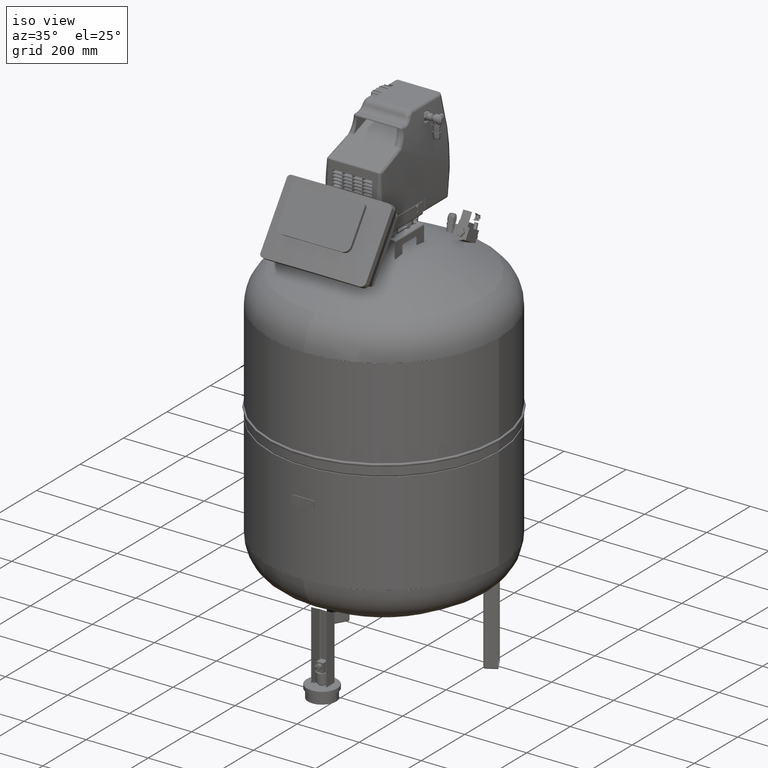
[diagram: clean part render]
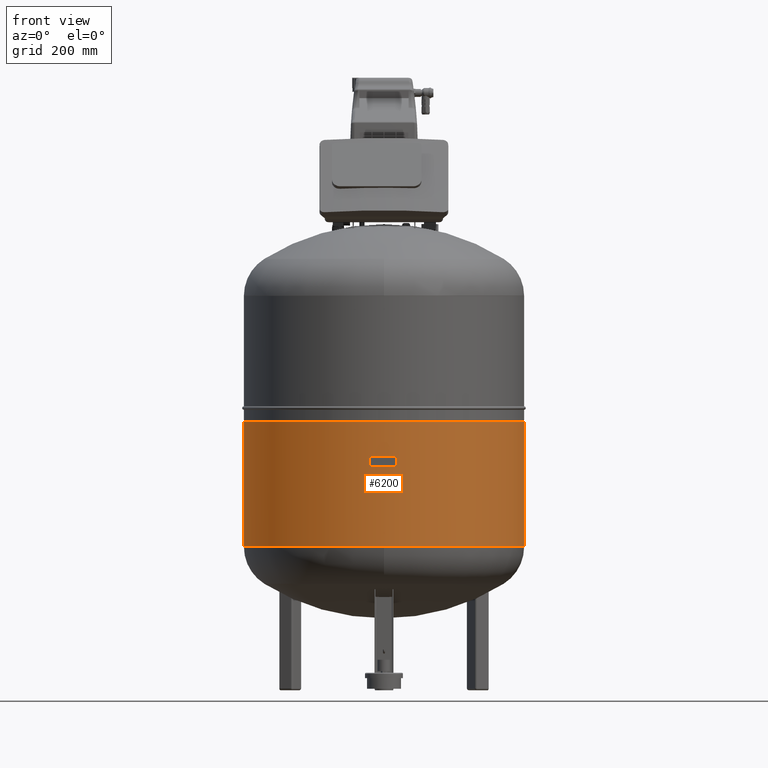
[diagram: tour spotlight — one face highlighted and labeled with its STEP entity id]
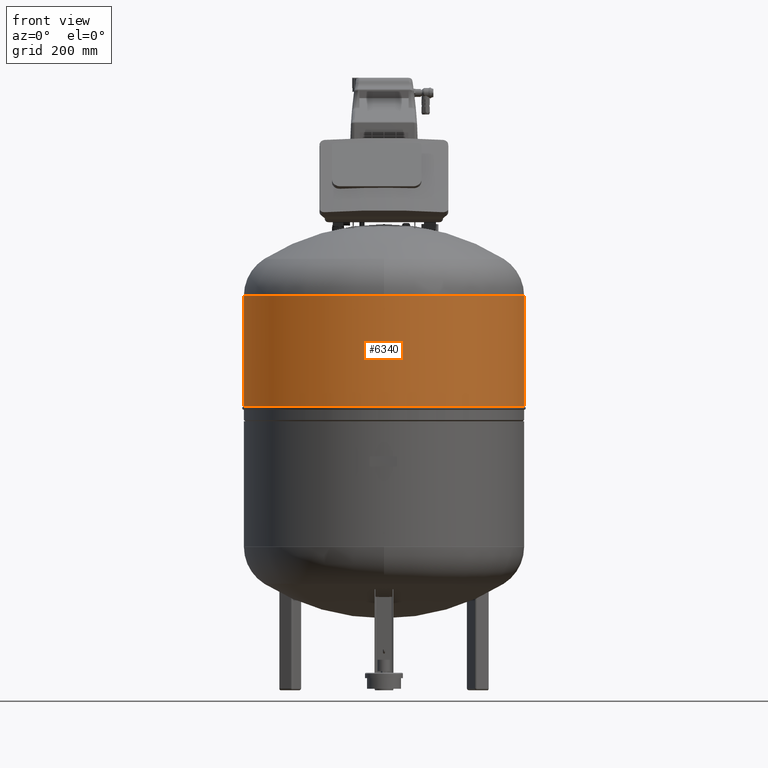
[diagram: tour spotlight — one face highlighted and labeled with its STEP entity id]
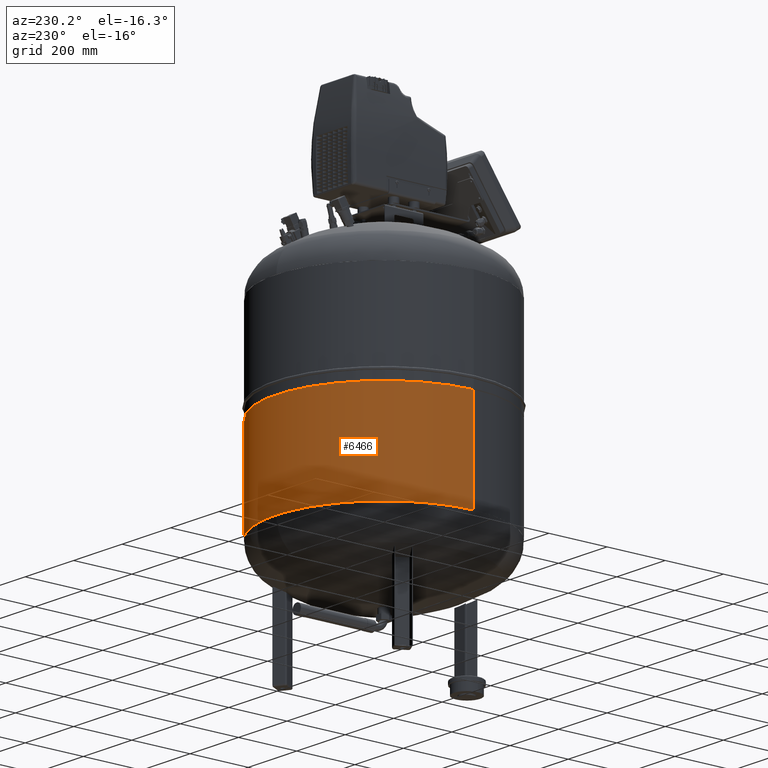
[diagram: tour spotlight — one face highlighted and labeled with its STEP entity id]
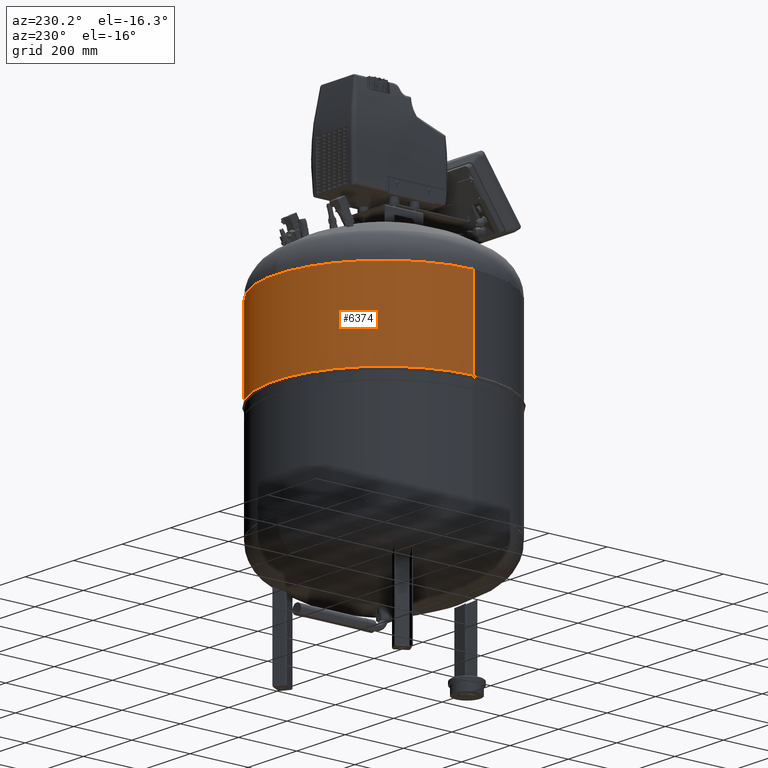
[diagram: tour spotlight — one face highlighted and labeled with its STEP entity id]
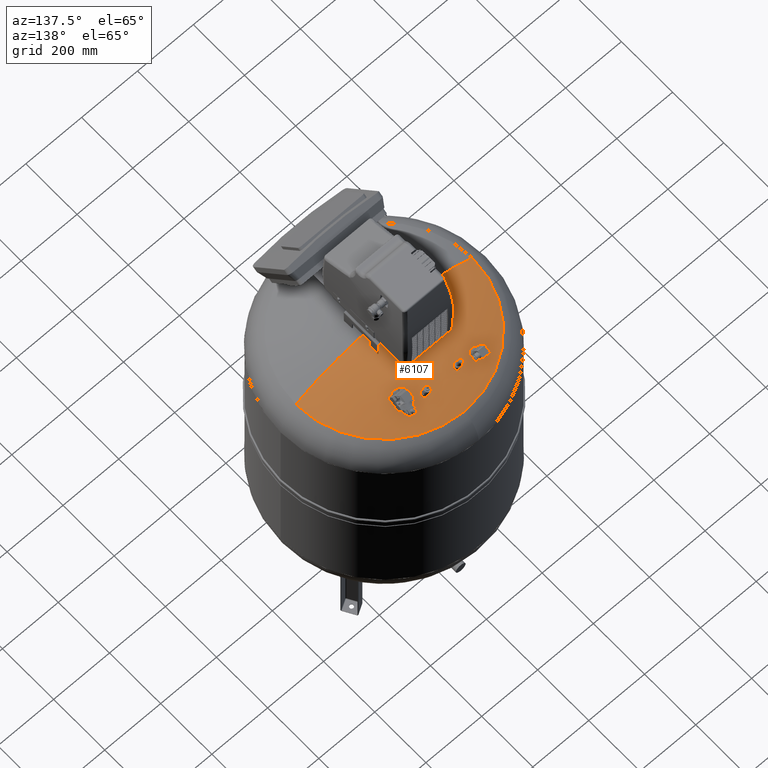
[diagram: tour spotlight — one face highlighted and labeled with its STEP entity id]
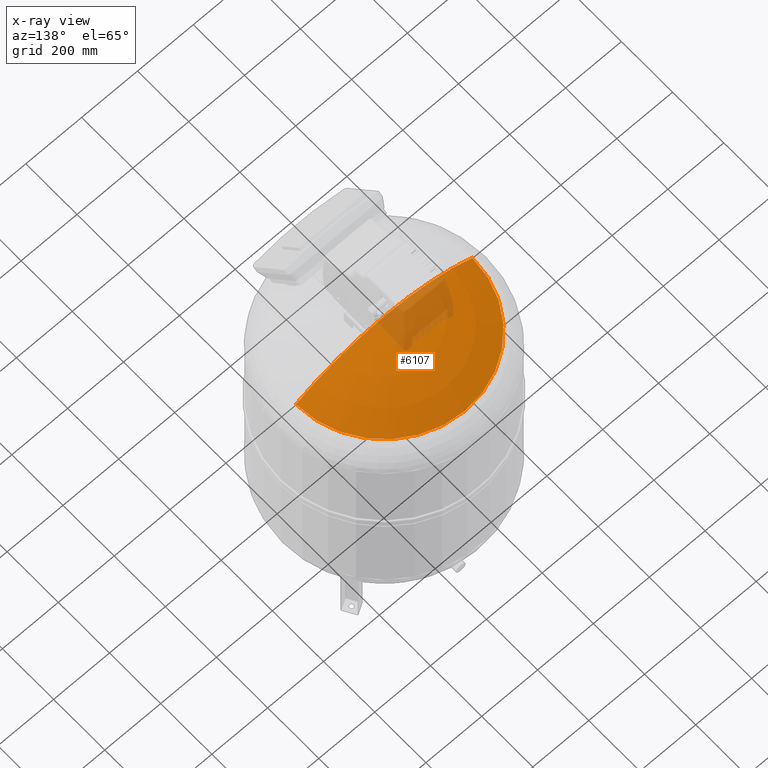
[diagram: x-ray of the same camera — body ghosted, this tour face saturated]
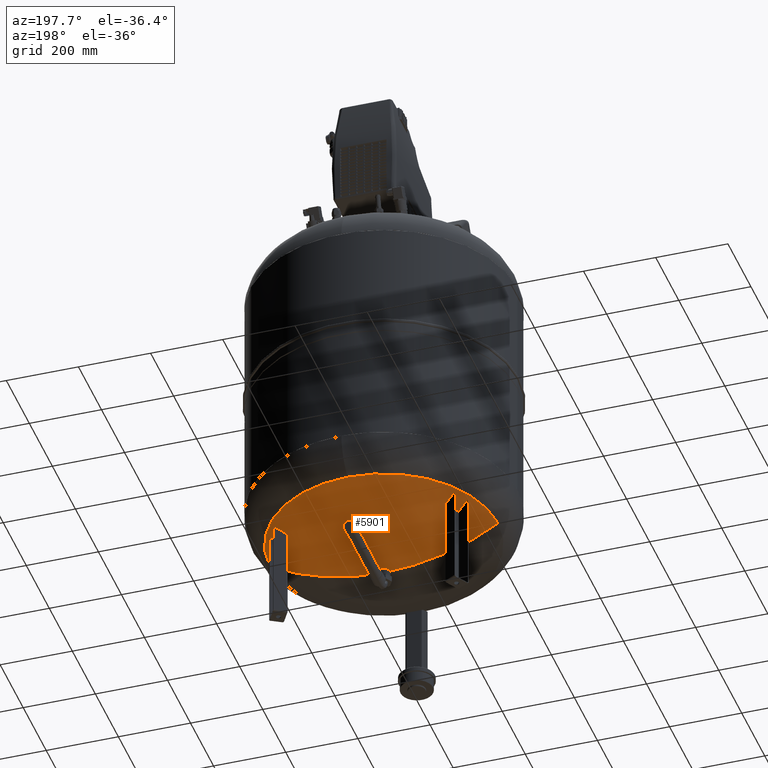
[diagram: tour spotlight — one face highlighted and labeled with its STEP entity id]
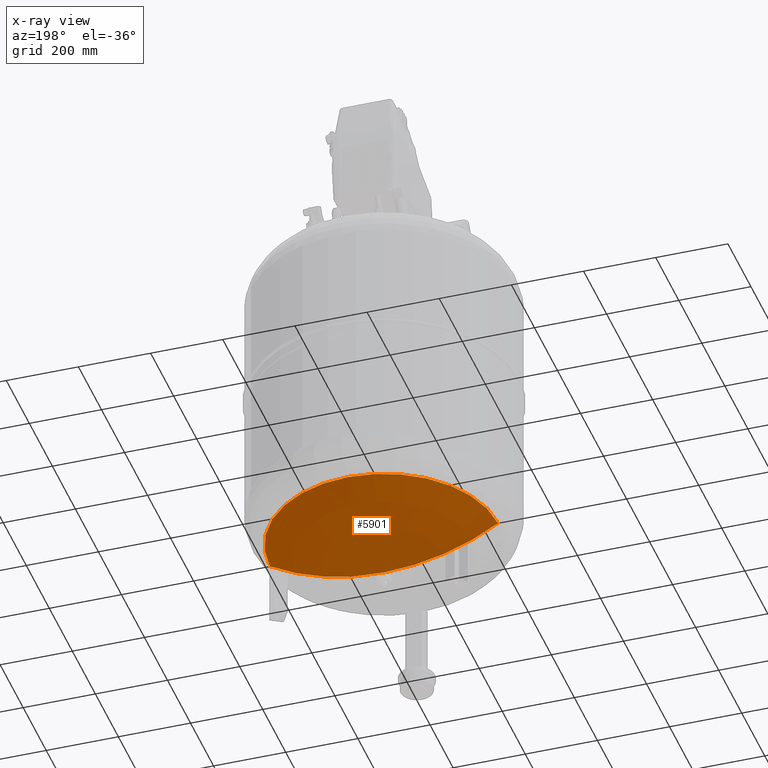
[diagram: x-ray of the same camera — body ghosted, this tour face saturated]
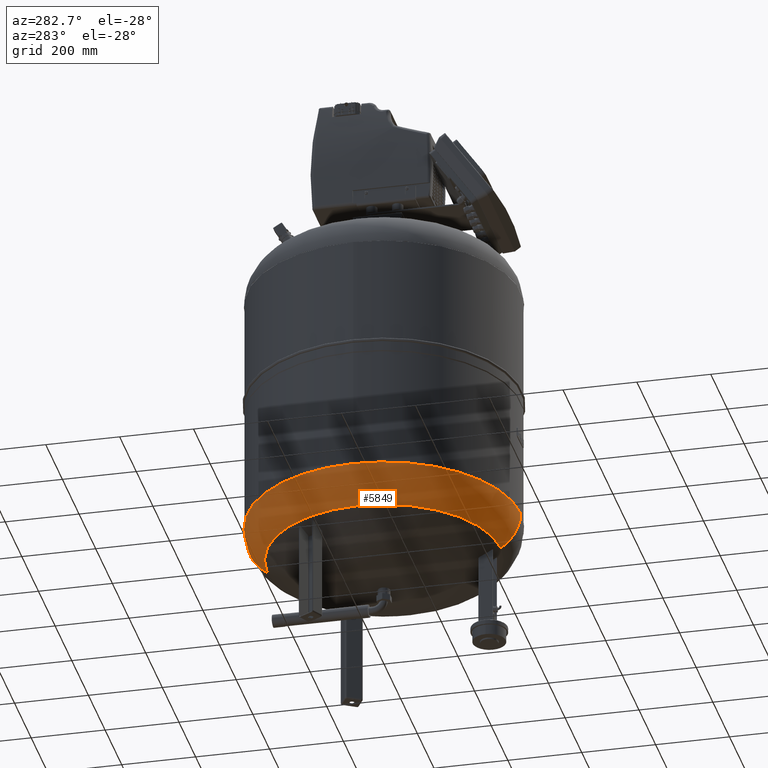
[diagram: tour spotlight — one face highlighted and labeled with its STEP entity id]
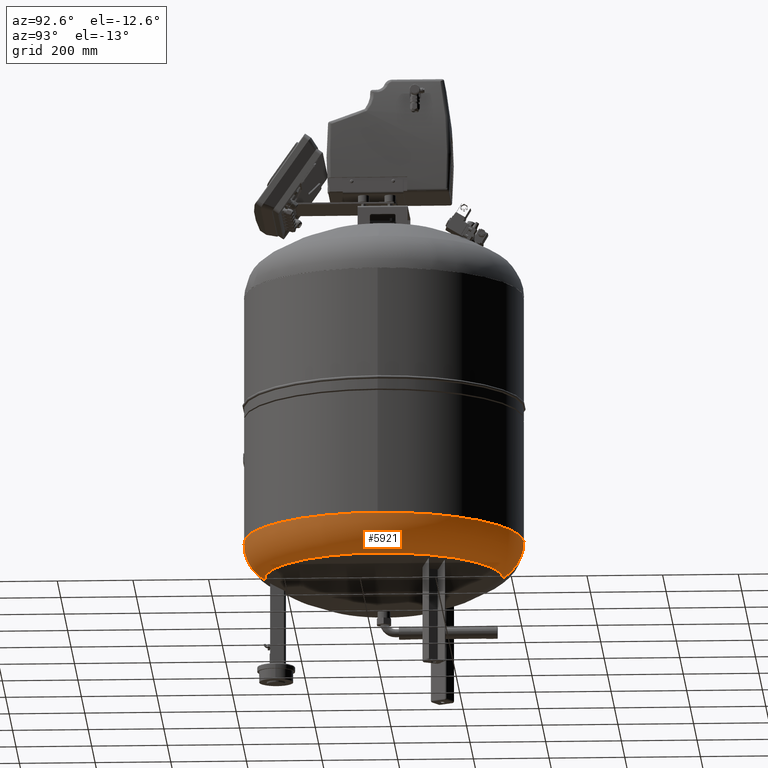
[diagram: tour spotlight — one face highlighted and labeled with its STEP entity id]
A machine part: a face-by-face anatomy tour. The part has 2542 B-rep faces; the first image is the clean iso view, then the 8 largest visible faces are spotlighted one at a time (largest first), each with its STEP entity span.

Face 1 — front view, entity #6200. In plain terms, the highlighted cylindrical surface (partial cylindrical patch) has radius 370 mm, axis along (-0, 0, -1).
Definition (entity closure, byte-faithful):
#6159=CARTESIAN_POINT('',(-2.861189E-014,0.0,544.5));
#6160=DIRECTION('',(-1.728815E-016,0.0,-1.0));
#6161=DIRECTION('',(-1.0,0.0,0.0));
#6162=AXIS2_PLACEMENT_3D('',#6159,#6160,#6161);
#6163=CYLINDRICAL_SURFACE('',#6162,369.99999999999994);
#6164=CARTESIAN_POINT('',(-370.00000000000006,0.0,379.00000000000011));
#6165=VERTEX_POINT('',#6164);
#6166=CARTESIAN_POINT('',(-369.99999999999989,0.0,710.0));
#6167=VERTEX_POINT('',#6166);
#6168=CARTESIAN_POINT('',(-370.00000000000006,0.0,379.00000000000011));
#6169=DIRECTION('',(0.0,0.0,1.0));
#6170=VECTOR('',#6169,330.99999999999989);
#6171=LINE('',#6168,#6170);
#6172=EDGE_CURVE('',#6165,#6167,#6171,.T.);
#6173=ORIENTED_EDGE('',*,*,#6172,.F.);
#6174=CARTESIAN_POINT('',(369.99999999999983,-4.531044E-014,379.00000000000006));
#6175=VERTEX_POINT('',#6174);
#6176=CARTESIAN_POINT('',(-5.722377E-014,0.0,379.00000000000006));
#6177=DIRECTION('',(0.0,0.0,-1.0));
#6178=DIRECTION('',(-1.0,0.0,0.0));
#6179=AXIS2_PLACEMENT_3D('',#6176,#6177,#6178);
#6180=CIRCLE('',#6179,370.0);
#6181=EDGE_CURVE('',#6175,#6165,#6180,.T.);
#6182=ORIENTED_EDGE('',*,*,#6181,.F.);
#6183=CARTESIAN_POINT('',(369.99999999999994,-4.531044E-014,710.0));
#6184=VERTEX_POINT('',#6183);
#6185=CARTESIAN_POINT('',(369.99999999999983,-4.531044E-014,379.00000000000006));
#6186=DIRECTION('',(0.0,0.0,1.0));
#6187=VECTOR('',#6186,330.99999999999994);
#6188=LINE('',#6185,#6187);
#6189=EDGE_CURVE('',#6175,#6184,#6188,.T.);
#6190=ORIENTED_EDGE('',*,*,#6189,.T.);
#6191=CARTESIAN_POINT('',(0.0,0.0,710.0));
#6192=DIRECTION('',(0.0,0.0,-1.0));
#6193=DIRECTION('',(-1.0,0.0,0.0));
#6194=AXIS2_PLACEMENT_3D('',#6191,#6192,#6193);
#6195=CIRCLE('',#6194,369.99999999999989);
#6196=EDGE_CURVE('',#6184,#6167,#6195,.T.);
#6197=ORIENTED_EDGE('',*,*,#6196,.T.);
#6198=EDGE_LOOP('',(#6173,#6182,#6190,#6197));
#6199=FACE_OUTER_BOUND('',#6198,.T.);
#6200=ADVANCED_FACE('',(#6199),#6163,.T.);

Face 2 — front view, entity #6340. In plain terms, the highlighted cylindrical surface (partial cylindrical patch) has radius 370 mm, axis along (-0, 0, -1).
Definition (entity closure, byte-faithful):
#6280=CARTESIAN_POINT('',(-369.99999999999972,0.0,749.40000000000009));
#6281=VERTEX_POINT('',#6280);
#6290=CARTESIAN_POINT('',(369.99999999999994,-4.531044E-014,749.39999999999986));
#6291=VERTEX_POINT('',#6290);
#6299=CARTESIAN_POINT('',(6.811531E-015,0.0,749.39999999999998));
#6300=DIRECTION('',(0.0,0.0,-1.0));
#6301=DIRECTION('',(-1.0,0.0,0.0));
#6302=AXIS2_PLACEMENT_3D('',#6299,#6300,#6301);
#6303=CIRCLE('',#6302,369.99999999999972);
#6304=EDGE_CURVE('',#6291,#6281,#6303,.T.);
#6309=CARTESIAN_POINT('',(3.201765E-014,0.0,895.20000000000005));
#6310=DIRECTION('',(-1.728815E-016,0.0,-1.0));
#6311=DIRECTION('',(-1.0,0.0,0.0));
#6312=AXIS2_PLACEMENT_3D('',#6309,#6310,#6311);
#6313=CYLINDRICAL_SURFACE('',#6312,369.99999999999989);
#6314=CARTESIAN_POINT('',(-369.99999999999989,0.0,1041.0));
#6315=VERTEX_POINT('',#6314);
#6316=CARTESIAN_POINT('',(-369.99999999999983,0.0,749.40000000000009));
#6317=DIRECTION('',(0.0,0.0,1.0));
#6318=VECTOR('',#6317,291.59999999999991);
#6319=LINE('',#6316,#6318);
#6320=EDGE_CURVE('',#6281,#6315,#6319,.T.);
#6321=ORIENTED_EDGE('',*,*,#6320,.F.);
#6322=ORIENTED_EDGE('',*,*,#6304,.F.);
#6323=CARTESIAN_POINT('',(369.99999999999994,-4.531044E-014,1041.0));
#6324=VERTEX_POINT('',#6323);
#6325=CARTESIAN_POINT('',(369.99999999999994,-4.531044E-014,749.39999999999986));
#6326=DIRECTION('',(0.0,0.0,1.0));
#6327=VECTOR('',#6326,291.60000000000014);
#6328=LINE('',#6325,#6327);
#6329=EDGE_CURVE('',#6291,#6324,#6328,.T.);
#6330=ORIENTED_EDGE('',*,*,#6329,.T.);
#6331=CARTESIAN_POINT('',(5.722377E-014,0.0,1041.0));
#6332=DIRECTION('',(0.0,0.0,-1.0));
#6333=DIRECTION('',(-1.0,0.0,0.0));
#6334=AXIS2_PLACEMENT_3D('',#6331,#6332,#6333);
#6335=CIRCLE('',#6334,369.99999999999994);
#6336=EDGE_CURVE('',#6324,#6315,#6335,.T.);
#6337=ORIENTED_EDGE('',*,*,#6336,.T.);
#6338=EDGE_LOOP('',(#6321,#6322,#6330,#6337));
#6339=FACE_OUTER_BOUND('',#6338,.T.);
#6340=ADVANCED_FACE('',(#6339),#6313,.T.);

Face 3 — auxiliary view, entity #6466. In plain terms, the highlighted cylindrical surface (partial cylindrical patch) has radius 370 mm, axis along (-0, 0, -1).
Definition (entity closure, byte-faithful):
#6164=CARTESIAN_POINT('',(-370.00000000000006,0.0,379.00000000000011));
#6165=VERTEX_POINT('',#6164);
#6166=CARTESIAN_POINT('',(-369.99999999999989,0.0,710.0));
#6167=VERTEX_POINT('',#6166);
#6168=CARTESIAN_POINT('',(-370.00000000000006,0.0,379.00000000000011));
#6169=DIRECTION('',(0.0,0.0,1.0));
#6170=VECTOR('',#6169,330.99999999999989);
#6171=LINE('',#6168,#6170);
#6172=EDGE_CURVE('',#6165,#6167,#6171,.T.);
#6174=CARTESIAN_POINT('',(369.99999999999983,-4.531044E-014,379.00000000000006));
#6175=VERTEX_POINT('',#6174);
#6183=CARTESIAN_POINT('',(369.99999999999994,-4.531044E-014,710.0));
#6184=VERTEX_POINT('',#6183);
#6185=CARTESIAN_POINT('',(369.99999999999983,-4.531044E-014,379.00000000000006));
#6186=DIRECTION('',(0.0,0.0,1.0));
#6187=VECTOR('',#6186,330.99999999999994);
#6188=LINE('',#6185,#6187);
#6189=EDGE_CURVE('',#6175,#6184,#6188,.T.);
#6434=CARTESIAN_POINT('',(0.0,0.0,710.0));
#6435=DIRECTION('',(0.0,0.0,-1.0));
#6436=DIRECTION('',(-1.0,0.0,0.0));
#6437=AXIS2_PLACEMENT_3D('',#6434,#6435,#6436);
#6438=CIRCLE('',#6437,369.99999999999989);
#6439=EDGE_CURVE('',#6167,#6184,#6438,.T.);
#6449=CARTESIAN_POINT('',(-2.861189E-014,0.0,544.5));
#6450=DIRECTION('',(-1.728815E-016,0.0,-1.0));
#6451=DIRECTION('',(-1.0,0.0,0.0));
#6452=AXIS2_PLACEMENT_3D('',#6449,#6450,#6451);
#6453=CYLINDRICAL_SURFACE('',#6452,369.99999999999994);
#6454=ORIENTED_EDGE('',*,*,#6172,.T.);
#6455=ORIENTED_EDGE('',*,*,#6439,.T.);
#6456=ORIENTED_EDGE('',*,*,#6189,.F.);
#6457=CARTESIAN_POINT('',(-5.722377E-014,0.0,379.00000000000006));
#6458=DIRECTION('',(0.0,0.0,-1.0));
#6459=DIRECTION('',(-1.0,0.0,0.0));
#6460=AXIS2_PLACEMENT_3D('',#6457,#6458,#6459);
#6461=CIRCLE('',#6460,370.0);
#6462=EDGE_CURVE('',#6165,#6175,#6461,.T.);
#6463=ORIENTED_EDGE('',*,*,#6462,.F.);
#6464=EDGE_LOOP('',(#6454,#6455,#6456,#6463));
#6465=FACE_OUTER_BOUND('',#6464,.T.);
#6466=ADVANCED_FACE('',(#6465),#6453,.T.);

Face 4 — auxiliary view, entity #6374. In plain terms, the highlighted cylindrical surface (partial cylindrical patch) has radius 370 mm, axis along (-0, 0, -1).
Definition (entity closure, byte-faithful):
#6280=CARTESIAN_POINT('',(-369.99999999999972,0.0,749.40000000000009));
#6281=VERTEX_POINT('',#6280);
#6290=CARTESIAN_POINT('',(369.99999999999994,-4.531044E-014,749.39999999999986));
#6291=VERTEX_POINT('',#6290);
#6314=CARTESIAN_POINT('',(-369.99999999999989,0.0,1041.0));
#6315=VERTEX_POINT('',#6314);
#6316=CARTESIAN_POINT('',(-369.99999999999983,0.0,749.40000000000009));
#6317=DIRECTION('',(0.0,0.0,1.0));
#6318=VECTOR('',#6317,291.59999999999991);
#6319=LINE('',#6316,#6318);
#6320=EDGE_CURVE('',#6281,#6315,#6319,.T.);
#6323=CARTESIAN_POINT('',(369.99999999999994,-4.531044E-014,1041.0));
#6324=VERTEX_POINT('',#6323);
#6325=CARTESIAN_POINT('',(369.99999999999994,-4.531044E-014,749.39999999999986));
#6326=DIRECTION('',(0.0,0.0,1.0));
#6327=VECTOR('',#6326,291.60000000000014);
#6328=LINE('',#6325,#6327);
#6329=EDGE_CURVE('',#6291,#6324,#6328,.T.);
#6346=CARTESIAN_POINT('',(5.722377E-014,0.0,1041.0));
#6347=DIRECTION('',(0.0,0.0,-1.0));
#6348=DIRECTION('',(-1.0,0.0,0.0));
#6349=AXIS2_PLACEMENT_3D('',#6346,#6347,#6348);
#6350=CIRCLE('',#6349,369.99999999999994);
#6351=EDGE_CURVE('',#6315,#6324,#6350,.T.);
#6357=CARTESIAN_POINT('',(3.201765E-014,0.0,895.20000000000005));
#6358=DIRECTION('',(-1.728815E-016,0.0,-1.0));
#6359=DIRECTION('',(-1.0,0.0,0.0));
#6360=AXIS2_PLACEMENT_3D('',#6357,#6358,#6359);
#6361=CYLINDRICAL_SURFACE('',#6360,369.99999999999989);
#6362=ORIENTED_EDGE('',*,*,#6320,.T.);
#6363=ORIENTED_EDGE('',*,*,#6351,.T.);
#6364=ORIENTED_EDGE('',*,*,#6329,.F.);
#6365=CARTESIAN_POINT('',(6.811531E-015,0.0,749.39999999999998));
#6366=DIRECTION('',(0.0,0.0,-1.0));
#6367=DIRECTION('',(-1.0,0.0,0.0));
#6368=AXIS2_PLACEMENT_3D('',#6365,#6366,#6367);
#6369=CIRCLE('',#6368,369.99999999999972);
#6370=EDGE_CURVE('',#6281,#6291,#6369,.T.);
#6371=ORIENTED_EDGE('',*,*,#6370,.F.);
#6372=EDGE_LOOP('',(#6362,#6363,#6364,#6371));
#6373=FACE_OUTER_BOUND('',#6372,.T.);
#6374=ADVANCED_FACE('',(#6373),#6361,.T.);

Face 5 — auxiliary view, entity #6107. An x-ray twin of the same camera follows (body ghosted, this face saturated) — the face is partly hidden behind the body. In plain terms, the highlighted spherical surface has radius 594 mm.
Definition (entity closure, byte-faithful):
#6028=CARTESIAN_POINT('',(2.754660E-014,315.93103448275861,1139.0144942749203));
#6029=VERTEX_POINT('',#6028);
#6037=CARTESIAN_POINT('',(315.93103448275861,-1.671377E-014,1139.0144942749205));
#6038=VERTEX_POINT('',#6037);
#6039=CARTESIAN_POINT('',(-1.114251E-014,-1.671377E-014,1139.0144942749205));
#6040=DIRECTION('',(0.0,0.0,-1.0));
#6041=DIRECTION('',(1.0,0.0,0.0));
#6042=AXIS2_PLACEMENT_3D('',#6039,#6040,#6041);
#6043=CIRCLE('',#6042,315.93103448275861);
#6044=EDGE_CURVE('',#6029,#6038,#6043,.T.);
#6061=CARTESIAN_POINT('',(-1.091148E-013,-1.091160E-013,1230.0));
#6062=VERTEX_POINT('',#6061);
#6063=CARTESIAN_POINT('',(-7.274402E-014,-1.091160E-013,636.0));
#6064=DIRECTION('',(0.0,1.0,0.0));
#6065=DIRECTION('',(1.0,0.0,0.0));
#6066=AXIS2_PLACEMENT_3D('',#6063,#6064,#6065);
#6067=CIRCLE('',#6066,594.0);
#6068=EDGE_CURVE('',#6062,#6038,#6067,.T.);
#6070=CARTESIAN_POINT('',(-315.93103448275861,-1.478051E-013,1139.0144942749205));
#6071=VERTEX_POINT('',#6070);
#6072=CARTESIAN_POINT('',(-7.274402E-014,-1.091160E-013,636.0));
#6073=DIRECTION('',(0.0,-1.0,0.0));
#6074=DIRECTION('',(-1.0,0.0,0.0));
#6075=AXIS2_PLACEMENT_3D('',#6072,#6073,#6074);
#6076=CIRCLE('',#6075,594.0);
#6077=EDGE_CURVE('',#6062,#6071,#6076,.T.);
#6090=CARTESIAN_POINT('',(-7.274402E-014,-1.091160E-013,636.0));
#6091=DIRECTION('',(0.0,0.0,1.0));
#6092=DIRECTION('',(1.0,0.0,0.0));
#6093=AXIS2_PLACEMENT_3D('',#6090,#6091,#6092);
#6094=SPHERICAL_SURFACE('',#6093,594.0);
#6095=ORIENTED_EDGE('',*,*,#6068,.T.);
#6096=ORIENTED_EDGE('',*,*,#6044,.F.);
#6097=CARTESIAN_POINT('',(-1.114251E-014,-1.671377E-014,1139.0144942749205));
#6098=DIRECTION('',(0.0,0.0,-1.0));
#6099=DIRECTION('',(1.0,0.0,0.0));
#6100=AXIS2_PLACEMENT_3D('',#6097,#6098,#6099);
#6101=CIRCLE('',#6100,315.93103448275861);
#6102=EDGE_CURVE('',#6071,#6029,#6101,.T.);
#6103=ORIENTED_EDGE('',*,*,#6102,.F.);
#6104=ORIENTED_EDGE('',*,*,#6077,.F.);
#6105=EDGE_LOOP('',(#6095,#6096,#6103,#6104));
#6106=FACE_OUTER_BOUND('',#6105,.T.);
#6107=ADVANCED_FACE('',(#6106),#6094,.T.);

Face 6 — auxiliary view, entity #5901. An x-ray twin of the same camera follows (body ghosted, this face saturated) — the face is partly hidden behind the body. In plain terms, the highlighted spherical surface has radius 594 mm.
Definition (entity closure, byte-faithful):
#5822=CARTESIAN_POINT('',(-3.868912E-014,315.93103448275861,280.98550572507963));
#5823=VERTEX_POINT('',#5822);
#5831=CARTESIAN_POINT('',(-315.93103448275861,-1.671377E-014,280.98550572507952));
#5832=VERTEX_POINT('',#5831);
#5833=CARTESIAN_POINT('',(0.0,-1.671377E-014,280.98550572507952));
#5834=DIRECTION('',(0.0,0.0,1.0));
#5835=DIRECTION('',(-1.0,0.0,0.0));
#5836=AXIS2_PLACEMENT_3D('',#5833,#5834,#5835);
#5837=CIRCLE('',#5836,315.93103448275861);
#5838=EDGE_CURVE('',#5823,#5832,#5837,.T.);
#5855=CARTESIAN_POINT('',(315.93103448275861,-1.091160E-013,280.98550572507952));
#5856=VERTEX_POINT('',#5855);
#5857=CARTESIAN_POINT('',(-3.637081E-014,-1.091160E-013,190.0));
#5858=VERTEX_POINT('',#5857);
#5859=CARTESIAN_POINT('',(0.0,-1.091160E-013,784.0));
#5860=DIRECTION('',(0.0,1.0,0.0));
#5861=DIRECTION('',(1.0,0.0,0.0));
#5862=AXIS2_PLACEMENT_3D('',#5859,#5860,#5861);
#5863=CIRCLE('',#5862,594.0);
#5864=EDGE_CURVE('',#5856,#5858,#5863,.T.);
#5874=CARTESIAN_POINT('',(0.0,-1.091160E-013,784.0));
#5875=DIRECTION('',(0.0,-1.0,0.0));
#5876=DIRECTION('',(-1.0,0.0,0.0));
#5877=AXIS2_PLACEMENT_3D('',#5874,#5875,#5876);
#5878=CIRCLE('',#5877,594.0);
#5879=EDGE_CURVE('',#5832,#5858,#5878,.T.);
#5884=CARTESIAN_POINT('',(0.0,-1.091160E-013,784.0));
#5885=DIRECTION('',(0.0,0.0,1.0));
#5886=DIRECTION('',(1.0,0.0,0.0));
#5887=AXIS2_PLACEMENT_3D('',#5884,#5885,#5886);
#5888=SPHERICAL_SURFACE('',#5887,594.0);
#5889=ORIENTED_EDGE('',*,*,#5864,.T.);
#5890=ORIENTED_EDGE('',*,*,#5879,.F.);
#5891=ORIENTED_EDGE('',*,*,#5838,.F.);
#5892=CARTESIAN_POINT('',(0.0,-1.671377E-014,280.98550572507952));
#5893=DIRECTION('',(0.0,0.0,1.0));
#5894=DIRECTION('',(-1.0,0.0,0.0));
#5895=AXIS2_PLACEMENT_3D('',#5892,#5893,#5894);
#5896=CIRCLE('',#5895,315.93103448275861);
#5897=EDGE_CURVE('',#5856,#5823,#5896,.T.);
#5898=ORIENTED_EDGE('',*,*,#5897,.F.);
#5899=EDGE_LOOP('',(#5889,#5890,#5891,#5898));
#5900=FACE_OUTER_BOUND('',#5899,.T.);
#5901=ADVANCED_FACE('',(#5900),#5888,.T.);

Face 7 — auxiliary view, entity #5849. In plain terms, the highlighted toroidal blend (fillet) surface has major radius 254.5 mm and minor (blend) radius 115.5 mm.
Definition (entity closure, byte-faithful):
#5754=CARTESIAN_POINT('',(-370.0,-3.468087E-014,378.79387961186956));
#5755=VERTEX_POINT('',#5754);
#5779=CARTESIAN_POINT('',(-4.531044E-014,369.99999999999994,378.79387961186961));
#5780=VERTEX_POINT('',#5779);
#5788=CARTESIAN_POINT('',(0.0,-3.468087E-014,378.79387961186956));
#5789=DIRECTION('',(0.0,0.0,1.0));
#5790=DIRECTION('',(-1.0,0.0,0.0));
#5791=AXIS2_PLACEMENT_3D('',#5788,#5789,#5790);
#5792=CIRCLE('',#5791,370.0);
#5793=EDGE_CURVE('',#5780,#5755,#5792,.T.);
#5798=CARTESIAN_POINT('',(0.0,-3.468087E-014,378.79387961186956));
#5799=DIRECTION('',(0.0,-1.836970E-016,1.0));
#5800=DIRECTION('',(0.0,-1.0,0.0));
#5801=AXIS2_PLACEMENT_3D('',#5798,#5799,#5800);
#5802=TOROIDAL_SURFACE('',#5801,254.50000000000003,115.5);
#5803=CARTESIAN_POINT('',(0.0,-370.00000000000006,378.7938796118695));
#5804=VERTEX_POINT('',#5803);
#5805=CARTESIAN_POINT('',(0.0,-315.93103448275861,280.98550572507941));
#5806=VERTEX_POINT('',#5805);
#5807=CARTESIAN_POINT('',(0.0,-254.50000000000006,378.7938796118695));
#5808=DIRECTION('',(1.0,0.0,0.0));
#5809=DIRECTION('',(0.0,-1.0,0.0));
#5810=AXIS2_PLACEMENT_3D('',#5807,#5808,#5809);
#5811=CIRCLE('',#5810,115.5);
#5812=EDGE_CURVE('',#5804,#5806,#5811,.T.);
#5813=ORIENTED_EDGE('',*,*,#5812,.F.);
#5814=CARTESIAN_POINT('',(0.0,-3.468087E-014,378.79387961186956));
#5815=DIRECTION('',(0.0,0.0,1.0));
#5816=DIRECTION('',(-1.0,0.0,0.0));
#5817=AXIS2_PLACEMENT_3D('',#5814,#5815,#5816);
#5818=CIRCLE('',#5817,370.0);
#5819=EDGE_CURVE('',#5755,#5804,#5818,.T.);
#5820=ORIENTED_EDGE('',*,*,#5819,.F.);
#5821=ORIENTED_EDGE('',*,*,#5793,.F.);
#5822=CARTESIAN_POINT('',(-3.868912E-014,315.93103448275861,280.98550572507963));
#5823=VERTEX_POINT('',#5822);
#5824=CARTESIAN_POINT('',(-3.116623E-014,254.5,378.79387961186961));
#5825=DIRECTION('',(-1.0,0.0,0.0));
#5826=DIRECTION('',(0.0,1.0,0.0));
#5827=AXIS2_PLACEMENT_3D('',#5824,#5825,#5826);
#5828=CIRCLE('',#5827,115.5);
#5829=EDGE_CURVE('',#5780,#5823,#5828,.T.);
#5830=ORIENTED_EDGE('',*,*,#5829,.T.);
#5831=CARTESIAN_POINT('',(-315.93103448275861,-1.671377E-014,280.98550572507952));
#5832=VERTEX_POINT('',#5831);
#5833=CARTESIAN_POINT('',(0.0,-1.671377E-014,280.98550572507952));
#5834=DIRECTION('',(0.0,0.0,1.0));
#5835=DIRECTION('',(-1.0,0.0,0.0));
#5836=AXIS2_PLACEMENT_3D('',#5833,#5834,#5835);
#5837=CIRCLE('',#5836,315.93103448275861);
#5838=EDGE_CURVE('',#5823,#5832,#5837,.T.);
#5839=ORIENTED_EDGE('',*,*,#5838,.T.);
#5840=CARTESIAN_POINT('',(0.0,-1.671377E-014,280.98550572507952));
#5841=DIRECTION('',(0.0,0.0,1.0));
#5842=DIRECTION('',(-1.0,0.0,0.0));
#5843=AXIS2_PLACEMENT_3D('',#5840,#5841,#5842);
#5844=CIRCLE('',#5843,315.93103448275861);
#5845=EDGE_CURVE('',#5832,#5806,#5844,.T.);
#5846=ORIENTED_EDGE('',*,*,#5845,.T.);
#5847=EDGE_LOOP('',(#5813,#5820,#5821,#5830,#5839,#5846));
#5848=FACE_OUTER_BOUND('',#5847,.T.);
#5849=ADVANCED_FACE('',(#5848),#5802,.T.);

Face 8 — auxiliary view, entity #5921. In plain terms, the highlighted toroidal blend (fillet) surface has major radius 254.5 mm and minor (blend) radius 115.5 mm.
Definition (entity closure, byte-faithful):
#5771=CARTESIAN_POINT('',(370.0,1.062956E-014,378.79387961186956));
#5772=VERTEX_POINT('',#5771);
#5779=CARTESIAN_POINT('',(-4.531044E-014,369.99999999999994,378.79387961186961));
#5780=VERTEX_POINT('',#5779);
#5781=CARTESIAN_POINT('',(0.0,-3.468087E-014,378.79387961186956));
#5782=DIRECTION('',(0.0,0.0,1.0));
#5783=DIRECTION('',(-1.0,0.0,0.0));
#5784=AXIS2_PLACEMENT_3D('',#5781,#5782,#5783);
#5785=CIRCLE('',#5784,370.0);
#5786=EDGE_CURVE('',#5772,#5780,#5785,.T.);
#5803=CARTESIAN_POINT('',(0.0,-370.00000000000006,378.7938796118695));
#5804=VERTEX_POINT('',#5803);
#5805=CARTESIAN_POINT('',(0.0,-315.93103448275861,280.98550572507941));
#5806=VERTEX_POINT('',#5805);
#5807=CARTESIAN_POINT('',(0.0,-254.50000000000006,378.7938796118695));
#5808=DIRECTION('',(1.0,0.0,0.0));
#5809=DIRECTION('',(0.0,-1.0,0.0));
#5810=AXIS2_PLACEMENT_3D('',#5807,#5808,#5809);
#5811=CIRCLE('',#5810,115.5);
#5812=EDGE_CURVE('',#5804,#5806,#5811,.T.);
#5822=CARTESIAN_POINT('',(-3.868912E-014,315.93103448275861,280.98550572507963));
#5823=VERTEX_POINT('',#5822);
#5824=CARTESIAN_POINT('',(-3.116623E-014,254.5,378.79387961186961));
#5825=DIRECTION('',(-1.0,0.0,0.0));
#5826=DIRECTION('',(0.0,1.0,0.0));
#5827=AXIS2_PLACEMENT_3D('',#5824,#5825,#5826);
#5828=CIRCLE('',#5827,115.5);
#5829=EDGE_CURVE('',#5780,#5823,#5828,.T.);
#5855=CARTESIAN_POINT('',(315.93103448275861,-1.091160E-013,280.98550572507952));
#5856=VERTEX_POINT('',#5855);
#5866=CARTESIAN_POINT('',(0.0,-1.671377E-014,280.98550572507952));
#5867=DIRECTION('',(0.0,0.0,1.0));
#5868=DIRECTION('',(-1.0,0.0,0.0));
#5869=AXIS2_PLACEMENT_3D('',#5866,#5867,#5868);
#5870=CIRCLE('',#5869,315.93103448275861);
#5871=EDGE_CURVE('',#5806,#5856,#5870,.T.);
#5892=CARTESIAN_POINT('',(0.0,-1.671377E-014,280.98550572507952));
#5893=DIRECTION('',(0.0,0.0,1.0));
#5894=DIRECTION('',(-1.0,0.0,0.0));
#5895=AXIS2_PLACEMENT_3D('',#5892,#5893,#5894);
#5896=CIRCLE('',#5895,315.93103448275861);
#5897=EDGE_CURVE('',#5856,#5823,#5896,.T.);
#5902=CARTESIAN_POINT('',(0.0,-3.468087E-014,378.79387961186956));
#5903=DIRECTION('',(0.0,-1.836970E-016,1.0));
#5904=DIRECTION('',(0.0,-1.0,0.0));
#5905=AXIS2_PLACEMENT_3D('',#5902,#5903,#5904);
#5906=TOROIDAL_SURFACE('',#5905,254.50000000000003,115.5);
#5907=ORIENTED_EDGE('',*,*,#5812,.T.);
#5908=ORIENTED_EDGE('',*,*,#5871,.T.);
#5909=ORIENTED_EDGE('',*,*,#5897,.T.);
#5910=ORIENTED_EDGE('',*,*,#5829,.F.);
#5911=ORIENTED_EDGE('',*,*,#5786,.F.);
#5912=CARTESIAN_POINT('',(0.0,-3.468087E-014,378.79387961186956));
#5913=DIRECTION('',(0.0,0.0,1.0));
#5914=DIRECTION('',(-1.0,0.0,0.0));
#5915=AXIS2_PLACEMENT_3D('',#5912,#5913,#5914);
#5916=CIRCLE('',#5915,370.0);
#5917=EDGE_CURVE('',#5804,#5772,#5916,.T.);
#5918=ORIENTED_EDGE('',*,*,#5917,.F.);
#5919=EDGE_LOOP('',(#5907,#5908,#5909,#5910,#5911,#5918));
#5920=FACE_OUTER_BOUND('',#5919,.T.);
#5921=ADVANCED_FACE('',(#5920),#5906,.T.);